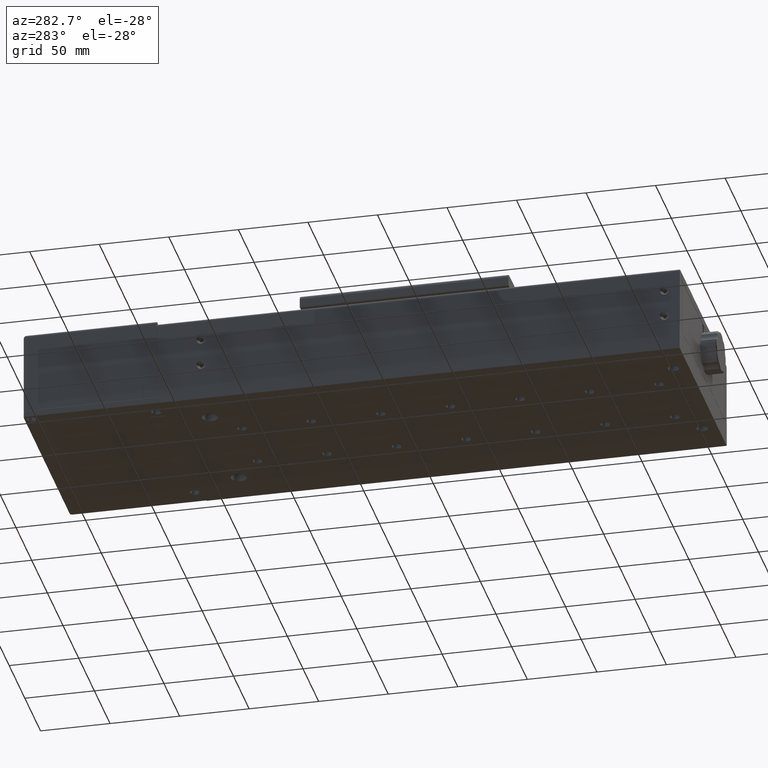
[diagram: clean part render]
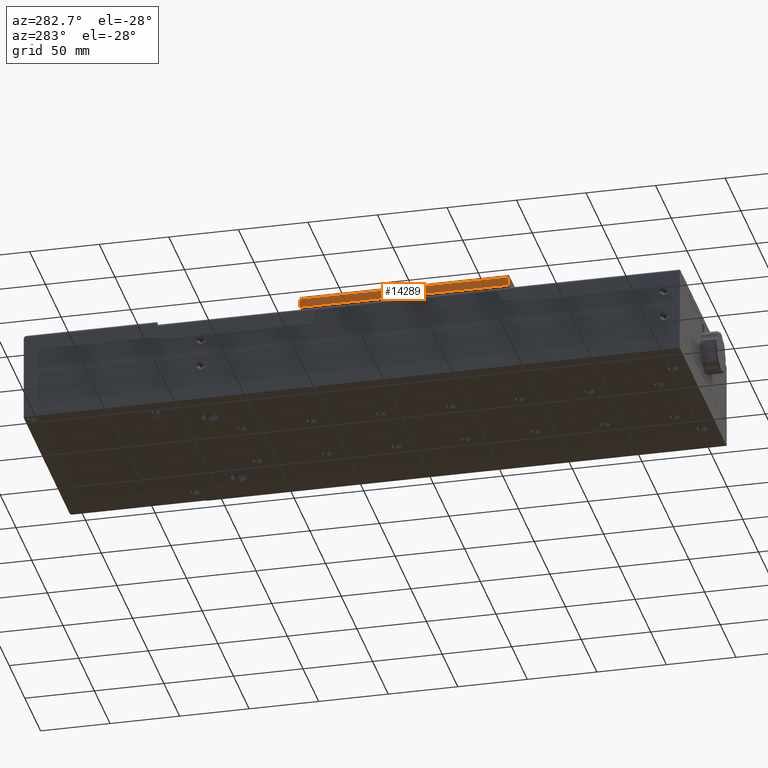
[diagram: same view with one face highlighted and labeled with its STEP entity id]
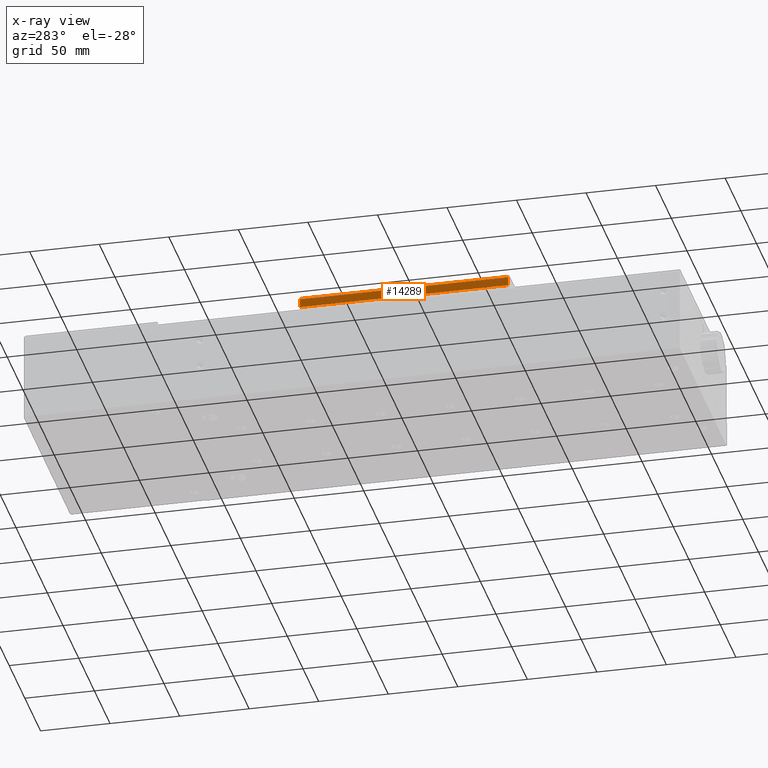
[diagram: x-ray of the same camera — body ghosted, the highlighted face saturated]
A machine part, auxiliary view. The second image highlights one B-rep face of the part: STEP entity #14289.
The next image is the same camera in x-ray: the body ghosted, the highlighted face saturated — about 0% of this face is hidden behind the body in this view.
In plain terms, the highlighted planar face has unit normal (1, -0, -0).
Its self-contained STEP definition (entity closure, byte-faithful):
#2431 = LINE ( 'NONE', #51893, #54702 ) ;
#3516 = LINE ( 'NONE', #70291, #29996 ) ;
#4032 = ORIENTED_EDGE ( 'NONE', *, *, #41778, .T. ) ;
#4853 = EDGE_CURVE ( 'NONE', #17250, #73405, #3516, .T. ) ;
#5962 = EDGE_CURVE ( 'NONE', #73405, #29526, #2431, .T. ) ;
#9074 = EDGE_LOOP ( 'NONE', ( #4032, #18955, #53286, #19455 ) ) ;
#14289 = ADVANCED_FACE ( 'NONE', ( #35050 ), #41885, .F. ) ;
#17145 = LINE ( 'NONE', #41690, #76778 ) ;
#17250 = VERTEX_POINT ( 'NONE', #41167 ) ;
#18955 = ORIENTED_EDGE ( 'NONE', *, *, #4853, .T. ) ;
#19455 = ORIENTED_EDGE ( 'NONE', *, *, #63707, .T. ) ;
#22602 = VERTEX_POINT ( 'NONE', #25974 ) ;
#25974 = CARTESIAN_POINT ( 'NONE',  ( -145.5854323028808324, 163.0129186807299959, 42.24665025355550085 ) ) ;
#26413 = LINE ( 'NONE', #75482, #45494 ) ;
#29526 = VERTEX_POINT ( 'NONE', #48778 ) ;
#29996 = VECTOR ( 'NONE', #70680, 1000.000000000000000 ) ;
#33148 = AXIS2_PLACEMENT_3D ( 'NONE', #35465, #66451, #48324 ) ;
#35050 = FACE_OUTER_BOUND ( 'NONE', #9074, .T. ) ;
#35465 = CARTESIAN_POINT ( 'NONE',  ( -145.5854323028810029, 13.21291868073016040, 52.04665025355550512 ) ) ;
#39810 = DIRECTION ( 'NONE',  ( 3.885780586188049864E-16, 1.000000000000000000, 1.362391624965246078E-20 ) ) ;
#41167 = CARTESIAN_POINT ( 'NONE',  ( -145.5854323028810029, 13.41291868073016147, 42.24665025355550085 ) ) ;
#41690 = CARTESIAN_POINT ( 'NONE',  ( -145.5854323028808324, 163.0129186807299959, 52.04665025355550512 ) ) ;
#41778 = EDGE_CURVE ( 'NONE', #22602, #17250, #26413, .T. ) ;
#41885 = PLANE ( 'NONE',  #33148 ) ;
#45494 = VECTOR ( 'NONE', #50943, 1000.000000000000000 ) ;
#47725 = DIRECTION ( 'NONE',  ( -8.668995986095240018E-19, 1.362391624965280082E-20, -1.000000000000000000 ) ) ;
#48324 = DIRECTION ( 'NONE',  ( -3.885780586188049864E-16, -1.000000000000000000, 0.000000000000000000 ) ) ;
#48778 = CARTESIAN_POINT ( 'NONE',  ( -145.5854323028808324, 163.0129186807299959, 48.54665025355549801 ) ) ;
#50943 = DIRECTION ( 'NONE',  ( -3.885780586188049864E-16, -1.000000000000000000, -1.362391624965246078E-20 ) ) ;
#51893 = CARTESIAN_POINT ( 'NONE',  ( -145.5854323028808324, 163.2129186807300130, 48.54665025355549801 ) ) ;
#53286 = ORIENTED_EDGE ( 'NONE', *, *, #5962, .T. ) ;
#54702 = VECTOR ( 'NONE', #39810, 1000.000000000000000 ) ;
#63707 = EDGE_CURVE ( 'NONE', #29526, #22602, #17145, .T. ) ;
#66451 = DIRECTION ( 'NONE',  ( 1.000000000000000000, -3.885780586188049864E-16, -8.668995986095240018E-19 ) ) ;
#70291 = CARTESIAN_POINT ( 'NONE',  ( -145.5854323028810029, 13.41291868073016147, 52.04665025355550512 ) ) ;
#70680 = DIRECTION ( 'NONE',  ( 8.668995986095240018E-19, -1.362391624965280082E-20, 1.000000000000000000 ) ) ;
#70926 = CARTESIAN_POINT ( 'NONE',  ( -145.5854323028810029, 13.41291868073016147, 48.54665025355549801 ) ) ;
#73405 = VERTEX_POINT ( 'NONE', #70926 ) ;
#75482 = CARTESIAN_POINT ( 'NONE',  ( -145.5854323028810029, 13.21291868073016040, 42.24665025355550085 ) ) ;
#76778 = VECTOR ( 'NONE', #47725, 1000.000000000000000 ) ;